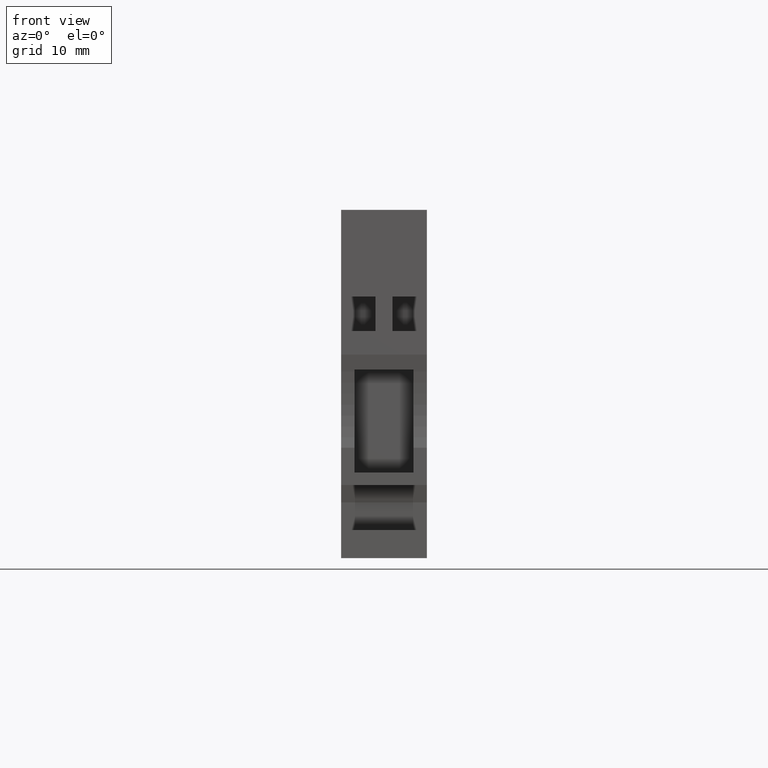
[diagram: clean part render]
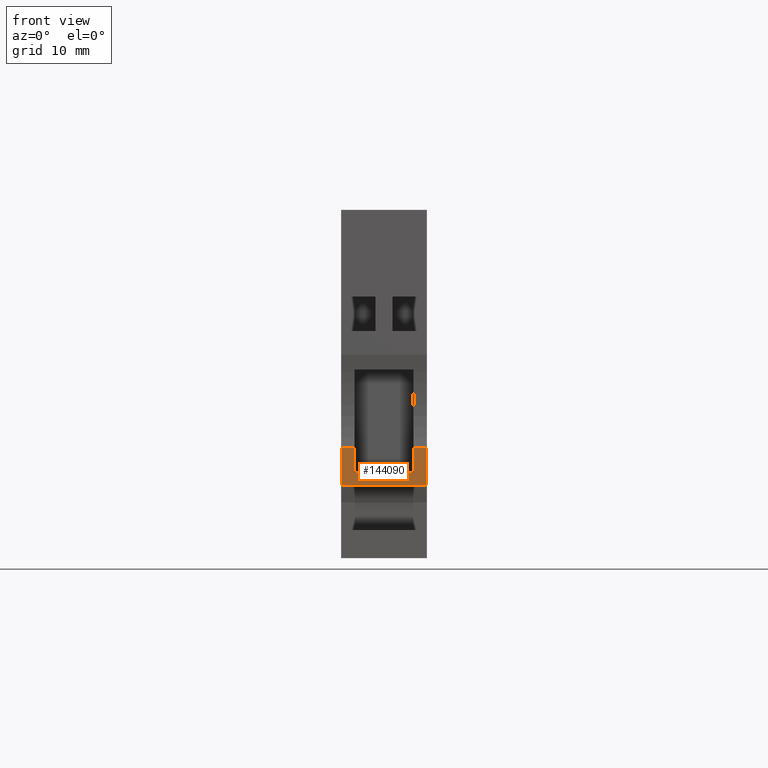
[diagram: same view with one face highlighted and labeled with its STEP entity id]
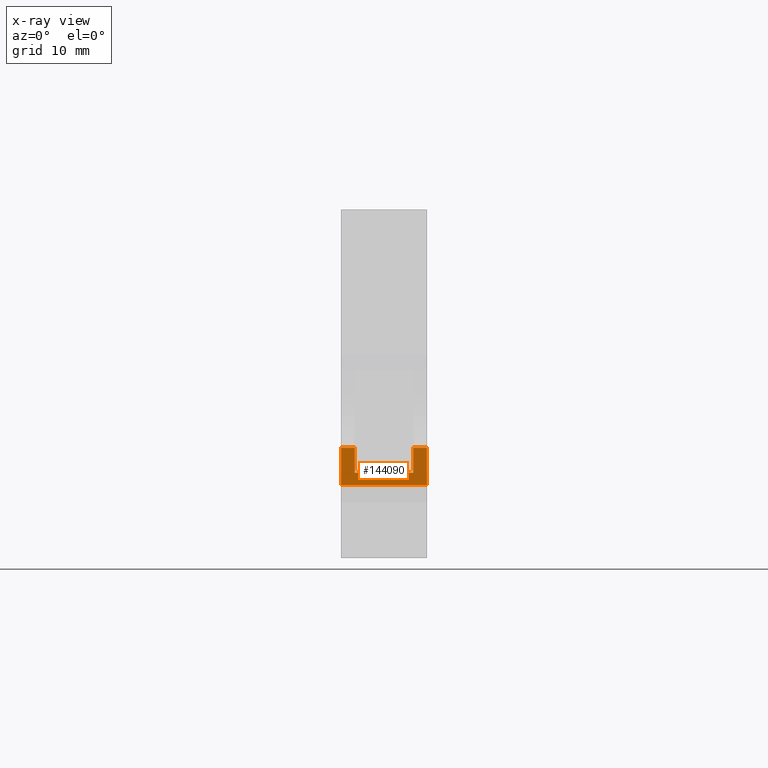
[diagram: x-ray of the same camera — body ghosted, the highlighted face saturated]
A machine part, front view. The second image highlights one B-rep face of the part: STEP entity #144090.
The next image is the same camera in x-ray: the body ghosted, the highlighted face saturated — about 0% of this face is hidden behind the body in this view.
In plain terms, the highlighted planar face has unit normal (0, 1, 0).
Its self-contained STEP definition (entity closure, byte-faithful):
#2630=CARTESIAN_POINT('',(46.6,-13.3,-6.15));
#2640=VERTEX_POINT('',#2630);
#2670=CARTESIAN_POINT('',(46.6,-12.3,-6.15));
#2680=DIRECTION('',(0.,1.,0.));
#2690=VECTOR('',#2680,1.);
#2700=LINE('',#2670,#2690);
#2710=CARTESIAN_POINT('',(46.6,-7.955879883892,-6.15));
#2720=VERTEX_POINT('',#2710);
#2730=EDGE_CURVE('',#2640,#2720,#2700,.T.);
#19310=CARTESIAN_POINT('',(46.6,-7.95587988389198,6.15000000000046));
#19320=VERTEX_POINT('',#19310);
#19350=CARTESIAN_POINT('',(46.6,0.,6.15));
#19360=DIRECTION('',(0.,1.,0.));
#19370=VECTOR('',#19360,1.);
#19380=LINE('',#19350,#19370);
#19390=CARTESIAN_POINT('',(46.6,-13.3,6.15000000000031));
#19400=VERTEX_POINT('',#19390);
#19410=EDGE_CURVE('',#19400,#19320,#19380,.T.);
#141640=CARTESIAN_POINT('',(46.6,-7.95587988389198,0.));
#141650=DIRECTION('',(0.,0.,1.));
#141660=VECTOR('',#141650,1.);
#141670=LINE('',#141640,#141660);
#141680=CARTESIAN_POINT('',(46.6,-7.95587988389198,-4.23565483686853));
#141690=VERTEX_POINT('',#141680);
#141700=EDGE_CURVE('',#2720,#141690,#141670,.T.);
#143670=CARTESIAN_POINT('',(46.6,-13.3,-6.15));
#143680=DIRECTION('',(-1.,0.,0.));
#143690=DIRECTION('',(0.,-1.,0.));
#143700=AXIS2_PLACEMENT_3D('',#143670,#143680,#143690);
#143710=PLANE('',#143700);
#143720=CARTESIAN_POINT('',(46.6,0.,4.23565483686853));
#143730=DIRECTION('',(0.,-1.,0.));
#143740=VECTOR('',#143730,1.);
#143750=LINE('',#143720,#143740);
#143760=CARTESIAN_POINT('',(46.6,-7.95587988389198,4.23565483686853));
#143770=VERTEX_POINT('',#143760);
#143780=CARTESIAN_POINT('',(46.6,-11.5390228644356,4.23565483686853));
#143790=VERTEX_POINT('',#143780);
#143800=EDGE_CURVE('',#143770,#143790,#143750,.T.);
#143810=ORIENTED_EDGE('',*,*,#143800,.F.);
#143820=CARTESIAN_POINT('',(46.6,-11.5390228644356,0.));
#143830=DIRECTION('',(0.,0.,-1.));
#143840=VECTOR('',#143830,1.);
#143850=LINE('',#143820,#143840);
#143860=CARTESIAN_POINT('',(46.6,-11.5390228644356,-4.23565483686853));
#143870=VERTEX_POINT('',#143860);
#143880=EDGE_CURVE('',#143790,#143870,#143850,.T.);
#143890=ORIENTED_EDGE('',*,*,#143880,.F.);
#143900=CARTESIAN_POINT('',(46.6,0.,-4.23565483686853));
#143910=DIRECTION('',(0.,1.,0.));
#143920=VECTOR('',#143910,1.);
#143930=LINE('',#143900,#143920);
#143940=EDGE_CURVE('',#143870,#141690,#143930,.T.);
#143950=ORIENTED_EDGE('',*,*,#143940,.F.);
#143960=ORIENTED_EDGE('',*,*,#141700,.T.);
#143970=ORIENTED_EDGE('',*,*,#2730,.T.);
#143980=CARTESIAN_POINT('',(46.6,-13.3,0.));
#143990=DIRECTION('',(0.,0.,1.));
#144000=VECTOR('',#143990,1.);
#144010=LINE('',#143980,#144000);
#144020=EDGE_CURVE('',#2640,#19400,#144010,.T.);
#144030=ORIENTED_EDGE('',*,*,#144020,.F.);
#144040=ORIENTED_EDGE('',*,*,#19410,.F.);
#144050=EDGE_CURVE('',#143770,#19320,#141670,.T.);
#144060=ORIENTED_EDGE('',*,*,#144050,.T.);
#144070=EDGE_LOOP('',(#144060,#144040,#144030,#143970,#143960,#143950,
#143890,#143810));
#144080=FACE_OUTER_BOUND('',#144070,.T.);
#144090=ADVANCED_FACE('',(#144080),#143710,.F.);